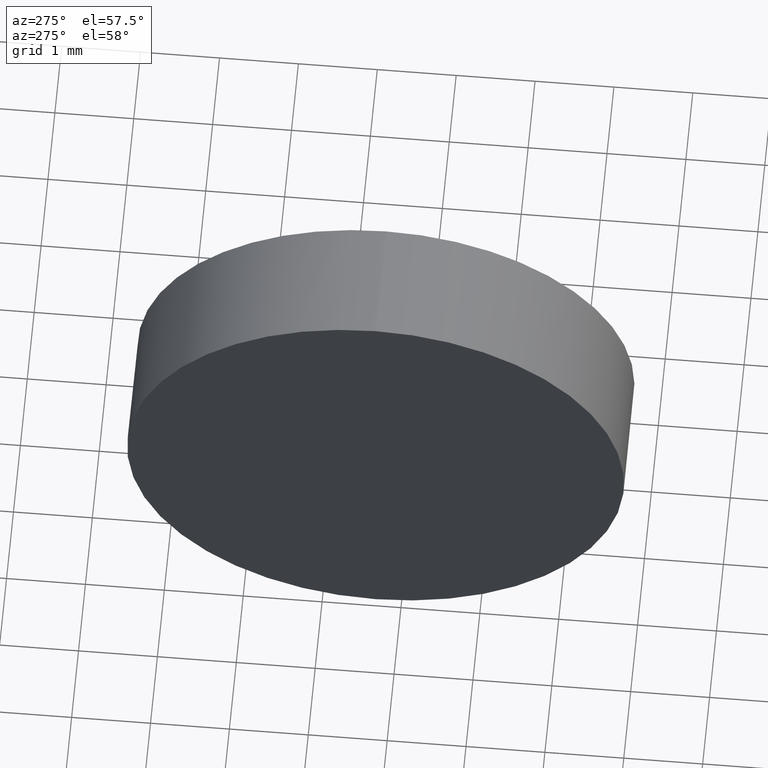
[diagram: clean part render]
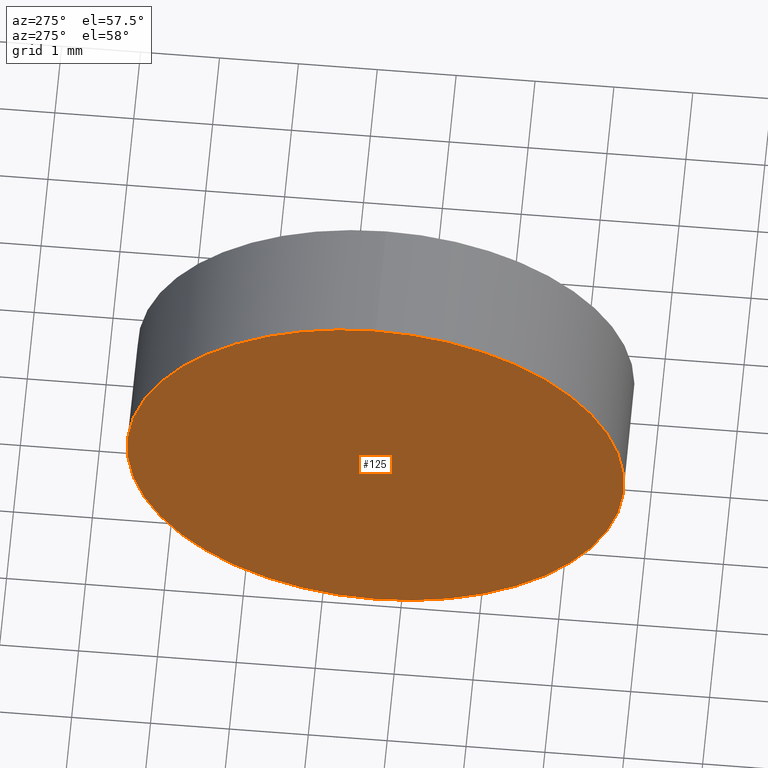
[diagram: same view with one face highlighted and labeled with its STEP entity id]
A machine part, auxiliary view. The second image highlights one B-rep face of the part: STEP entity #125.
In plain terms, the highlighted planar face has unit normal (1, 0, 0).
Its self-contained STEP definition (entity closure, byte-faithful):
#6 = CARTESIAN_POINT ( 'NONE',  ( 418.0098370035601100, -21.67740160652397200, 3.149999999999999900 ) ) ;
#10 = CARTESIAN_POINT ( 'NONE',  ( 418.0098370035601100, -21.67740160652397200, -3.149999999999999900 ) ) ;
#15 = AXIS2_PLACEMENT_3D ( 'NONE', #26, #31, #116 ) ;
#18 = CIRCLE ( 'NONE', #146, 3.149999999999999900 ) ;
#26 = CARTESIAN_POINT ( 'NONE',  ( 418.0098370035601100, -21.67740160652397200, 0.0000000000000000000 ) ) ;
#28 = EDGE_CURVE ( 'NONE', #94, #36, #139, .T. ) ;
#31 = DIRECTION ( 'NONE',  ( 1.000000000000000000, 0.0000000000000000000, 0.0000000000000000000 ) ) ;
#36 = VERTEX_POINT ( 'NONE', #6 ) ;
#38 = CARTESIAN_POINT ( 'NONE',  ( 418.0098370035601100, -21.67740160652397200, 0.0000000000000000000 ) ) ;
#49 = EDGE_CURVE ( 'NONE', #36, #94, #18, .T. ) ;
#57 = FACE_OUTER_BOUND ( 'NONE', #179, .T. ) ;
#68 = DIRECTION ( 'NONE',  ( -1.000000000000000000, -0.0000000000000000000, -0.0000000000000000000 ) ) ;
#84 = DIRECTION ( 'NONE',  ( -1.000000000000000000, -0.0000000000000000000, -0.0000000000000000000 ) ) ;
#85 = DIRECTION ( 'NONE',  ( 0.0000000000000000000, 0.0000000000000000000, 1.000000000000000000 ) ) ;
#90 = ORIENTED_EDGE ( 'NONE', *, *, #28, .T. ) ;
#94 = VERTEX_POINT ( 'NONE', #10 ) ;
#116 = DIRECTION ( 'NONE',  ( 0.0000000000000000000, 0.0000000000000000000, -1.000000000000000000 ) ) ;
#119 = AXIS2_PLACEMENT_3D ( 'NONE', #151, #84, #85 ) ;
#120 = ORIENTED_EDGE ( 'NONE', *, *, #49, .T. ) ;
#125 = ADVANCED_FACE ( 'NONE', ( #57 ), #156, .F. ) ;
#139 = CIRCLE ( 'NONE', #119, 3.149999999999999900 ) ;
#146 = AXIS2_PLACEMENT_3D ( 'NONE', #38, #68, #175 ) ;
#151 = CARTESIAN_POINT ( 'NONE',  ( 418.0098370035601100, -21.67740160652397200, 0.0000000000000000000 ) ) ;
#156 = PLANE ( 'NONE',  #15 ) ;
#175 = DIRECTION ( 'NONE',  ( 0.0000000000000000000, 0.0000000000000000000, 1.000000000000000000 ) ) ;
#179 = EDGE_LOOP ( 'NONE', ( #120, #90 ) ) ;